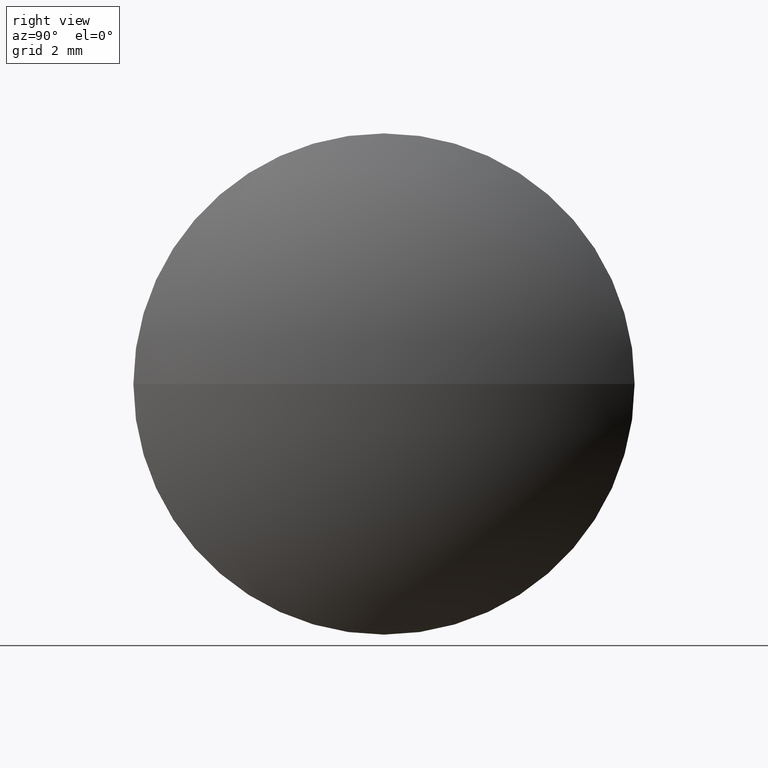
[diagram: clean part render]
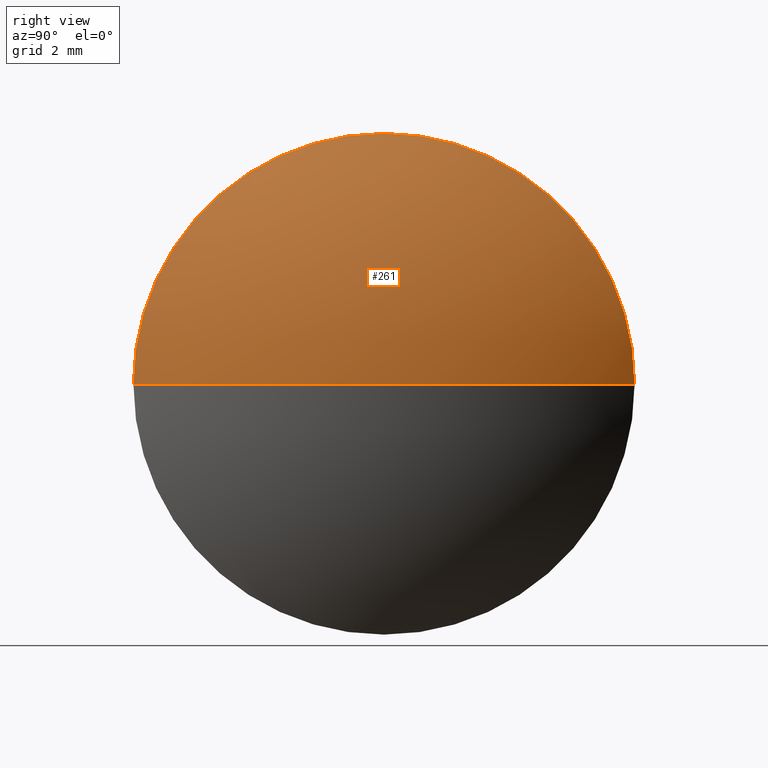
[diagram: same view with one face highlighted and labeled with its STEP entity id]
A machine part, right view. The second image highlights one B-rep face of the part: STEP entity #261.
In plain terms, the highlighted spherical surface has radius 12.9187 mm.
Its self-contained STEP definition (entity closure, byte-faithful):
#8 = EDGE_LOOP ( 'NONE', ( #154, #253, #309, #137 ) ) ;
#10 = DIRECTION ( 'NONE',  ( 0.0000000000000000000, 0.0000000000000000000, 1.000000000000000000 ) ) ;
#20 = EDGE_CURVE ( 'NONE', #120, #103, #58, .T. ) ;
#35 = CARTESIAN_POINT ( 'NONE',  ( 40.83923844960349900, 28.71030296644745400, 0.0000000000000000000 ) ) ;
#36 = EDGE_CURVE ( 'NONE', #103, #276, #331, .T. ) ;
#44 = CIRCLE ( 'NONE', #56, 7.499999999999927200 ) ;
#54 = CIRCLE ( 'NONE', #72, 12.91874999999988200 ) ;
#55 = AXIS2_PLACEMENT_3D ( 'NONE', #301, #86, #10 ) ;
#56 = AXIS2_PLACEMENT_3D ( 'NONE', #232, #68, #131 ) ;
#58 = CIRCLE ( 'NONE', #149, 12.91874999999988600 ) ;
#64 = CARTESIAN_POINT ( 'NONE',  ( 40.83923844960349900, 28.71030296644745400, 0.0000000000000000000 ) ) ;
#68 = DIRECTION ( 'NONE',  ( -1.000000000000000000, -0.0000000000000000000, -0.0000000000000000000 ) ) ;
#72 = AXIS2_PLACEMENT_3D ( 'NONE', #35, #155, #284 ) ;
#82 = EDGE_CURVE ( 'NONE', #120, #300, #54, .T. ) ;
#86 = DIRECTION ( 'NONE',  ( -1.000000000000000000, -0.0000000000000000000, -0.0000000000000000000 ) ) ;
#103 = VERTEX_POINT ( 'NONE', #124 ) ;
#105 = CARTESIAN_POINT ( 'NONE',  ( 51.35798844960340400, 28.71030296644745400, 7.499999999999927200 ) ) ;
#118 = CARTESIAN_POINT ( 'NONE',  ( 40.83923844960349900, 28.71030296644745400, 0.0000000000000000000 ) ) ;
#120 = VERTEX_POINT ( 'NONE', #327 ) ;
#121 = DIRECTION ( 'NONE',  ( 0.0000000000000000000, 1.224646799147353200E-016, -1.000000000000000000 ) ) ;
#122 = DIRECTION ( 'NONE',  ( 0.0000000000000000000, 1.000000000000000000, 1.224646799147352700E-016 ) ) ;
#124 = CARTESIAN_POINT ( 'NONE',  ( 51.35798844960340400, 21.21030296644752200, -9.184850993605063100E-016 ) ) ;
#125 = DIRECTION ( 'NONE',  ( -0.0000000000000000000, 0.0000000000000000000, -1.000000000000000000 ) ) ;
#131 = DIRECTION ( 'NONE',  ( 0.0000000000000000000, 0.0000000000000000000, 1.000000000000000000 ) ) ;
#137 = ORIENTED_EDGE ( 'NONE', *, *, #36, .F. ) ;
#149 = AXIS2_PLACEMENT_3D ( 'NONE', #118, #121, #122 ) ;
#154 = ORIENTED_EDGE ( 'NONE', *, *, #20, .F. ) ;
#155 = DIRECTION ( 'NONE',  ( -0.0000000000000000000, 0.0000000000000000000, 1.000000000000000000 ) ) ;
#157 = AXIS2_PLACEMENT_3D ( 'NONE', #64, #125, #226 ) ;
#226 = DIRECTION ( 'NONE',  ( 0.0000000000000000000, 1.000000000000000000, 0.0000000000000000000 ) ) ;
#232 = CARTESIAN_POINT ( 'NONE',  ( 51.35798844960340400, 28.71030296644745400, 0.0000000000000000000 ) ) ;
#240 = EDGE_CURVE ( 'NONE', #276, #300, #44, .T. ) ;
#253 = ORIENTED_EDGE ( 'NONE', *, *, #82, .T. ) ;
#261 = ADVANCED_FACE ( 'NONE', ( #330 ), #264, .T. ) ;
#264 = SPHERICAL_SURFACE ( 'NONE', #157, 12.91874999999988200 ) ;
#276 = VERTEX_POINT ( 'NONE', #105 ) ;
#284 = DIRECTION ( 'NONE',  ( 1.000000000000000000, 0.0000000000000000000, 0.0000000000000000000 ) ) ;
#300 = VERTEX_POINT ( 'NONE', #338 ) ;
#301 = CARTESIAN_POINT ( 'NONE',  ( 51.35798844960340400, 28.71030296644745400, 0.0000000000000000000 ) ) ;
#309 = ORIENTED_EDGE ( 'NONE', *, *, #240, .F. ) ;
#327 = CARTESIAN_POINT ( 'NONE',  ( 53.75798844960338100, 28.71030296644745400, 0.0000000000000000000 ) ) ;
#330 = FACE_OUTER_BOUND ( 'NONE', #8, .T. ) ;
#331 = CIRCLE ( 'NONE', #55, 7.499999999999927200 ) ;
#338 = CARTESIAN_POINT ( 'NONE',  ( 51.35798844960340400, 36.21030296644737900, 0.0000000000000000000 ) ) ;